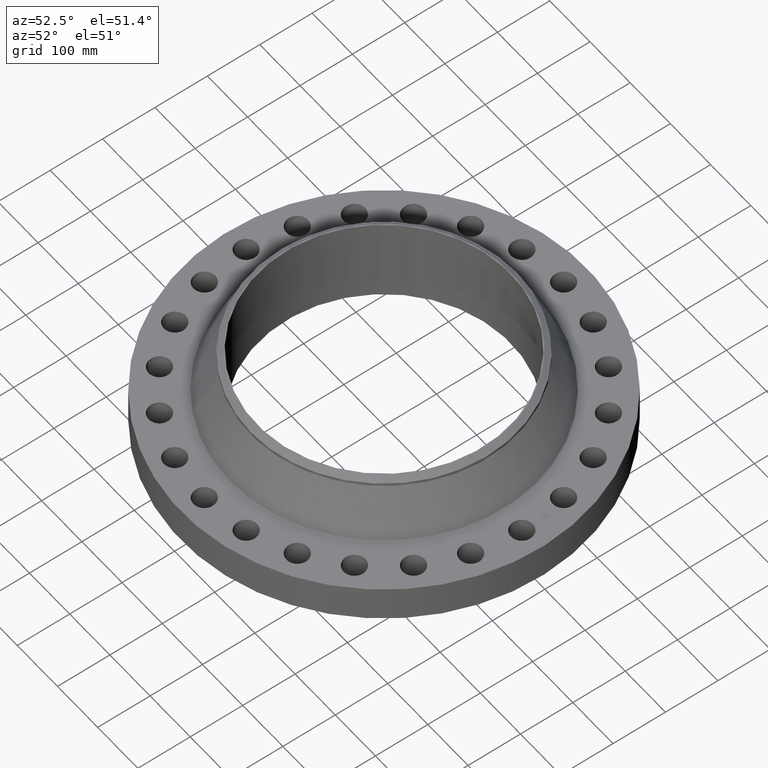
[diagram: clean part render]
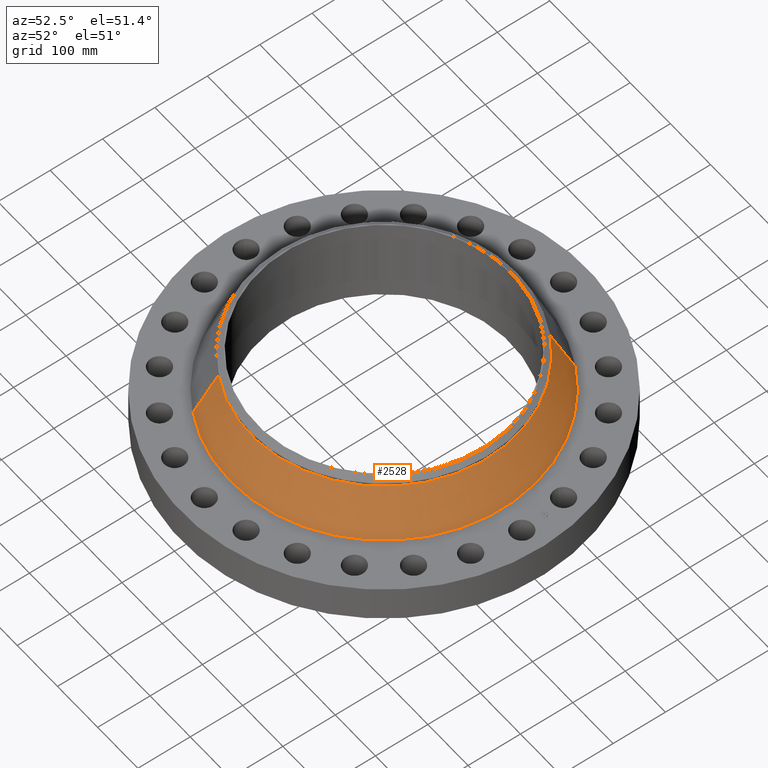
[diagram: same view with one face highlighted and labeled with its STEP entity id]
A machine part, auxiliary view. The second image highlights one B-rep face of the part: STEP entity #2528.
In plain terms, the highlighted conical surface has half-angle 25.231 deg.
Its self-contained STEP definition (entity closure, byte-faithful):
#2347=AXIS2_PLACEMENT_3D('Circle Axis2P3D',#2345,#2346,$) ;
#2515=AXIS2_PLACEMENT_3D('Cone Axis2P3D',#2512,#2513,#2514) ;
#2519=AXIS2_PLACEMENT_3D('Circle Axis2P3D',#2517,#2518,$) ;
#2311=CARTESIAN_POINT('Vertex',(-5.52660535107,-10.1163832379,2.81884796279)) ;
#2318=CARTESIAN_POINT('Vertex',(5.52660535107,10.1163832379,2.81884796278)) ;
#2345=CARTESIAN_POINT('Axis2P3D Location',(0.,0.,2.81884796278)) ;
#2479=CARTESIAN_POINT('Line Origine',(-5.16043036856,-9.44610442839,4.43969172212)) ;
#2483=CARTESIAN_POINT('Vertex',(-4.79425538604,-8.7758256189,6.06053548147)) ;
#2490=CARTESIAN_POINT('Vertex',(4.79425538605,8.77582561891,6.06053548145)) ;
#2493=CARTESIAN_POINT('Line Origine',(5.16043036856,9.44610442839,4.43969172212)) ;
#2512=CARTESIAN_POINT('Axis2P3D Location',(0.,0.,6.06053548147)) ;
#2517=CARTESIAN_POINT('Axis2P3D Location',(0.,0.,6.06053548147)) ;
#2346=DIRECTION('Axis2P3D Direction',(-0.,0.,-0.0393700787402)) ;
#2480=DIRECTION('Vector Direction',(-0.00804579822596,-0.014727734864,-0.0356140710491)) ;
#2494=DIRECTION('Vector Direction',(0.00804579822596,0.014727734864,-0.0356140710491)) ;
#2513=DIRECTION('Axis2P3D Direction',(0.,0.,-0.0393700787402)) ;
#2514=DIRECTION('Axis2P3D XDirection',(0.0188750212049,0.0345504945626,0.)) ;
#2518=DIRECTION('Axis2P3D Direction',(-0.,0.,-0.0393700787402)) ;
#2481=VECTOR('Line Direction',#2480,0.0393700787402) ;
#2495=VECTOR('Line Direction',#2494,0.0393700787402) ;
#2523=ORIENTED_EDGE('',*,*,#2349,.F.) ;
#2524=ORIENTED_EDGE('',*,*,#2497,.T.) ;
#2525=ORIENTED_EDGE('',*,*,#2521,.T.) ;
#2526=ORIENTED_EDGE('',*,*,#2485,.F.) ;
#2528=ADVANCED_FACE('PartBody',(#2527),#2516,.T.) ;
#2348=CIRCLE('generated circle',#2347,11.5275572661) ;
#2520=CIRCLE('generated circle',#2519,10.) ;
#2516=CONICAL_SURFACE('Cone',#2515,10.,0.440362021604) ;
#2349=EDGE_CURVE('',#2319,#2312,#2348,.T.) ;
#2485=EDGE_CURVE('',#2312,#2484,#2482,.F.) ;
#2497=EDGE_CURVE('',#2319,#2491,#2496,.F.) ;
#2521=EDGE_CURVE('',#2491,#2484,#2520,.T.) ;
#2522=EDGE_LOOP('',(#2523,#2524,#2525,#2526)) ;
#2527=FACE_OUTER_BOUND('',#2522,.T.) ;
#2482=LINE('Line',#2479,#2481) ;
#2496=LINE('Line',#2493,#2495) ;
#2312=VERTEX_POINT('',#2311) ;
#2319=VERTEX_POINT('',#2318) ;
#2484=VERTEX_POINT('',#2483) ;
#2491=VERTEX_POINT('',#2490) ;